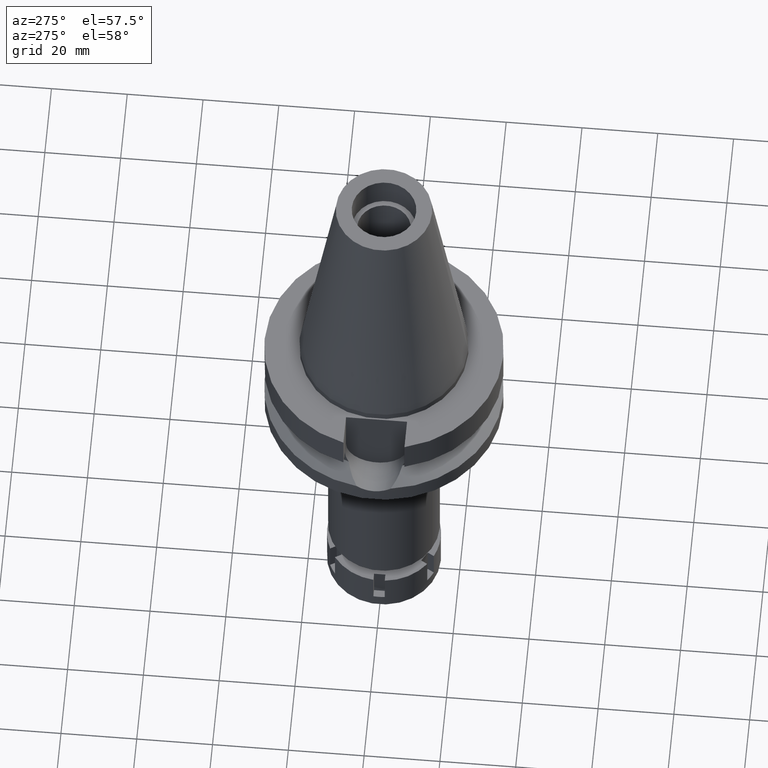
[diagram: clean part render]
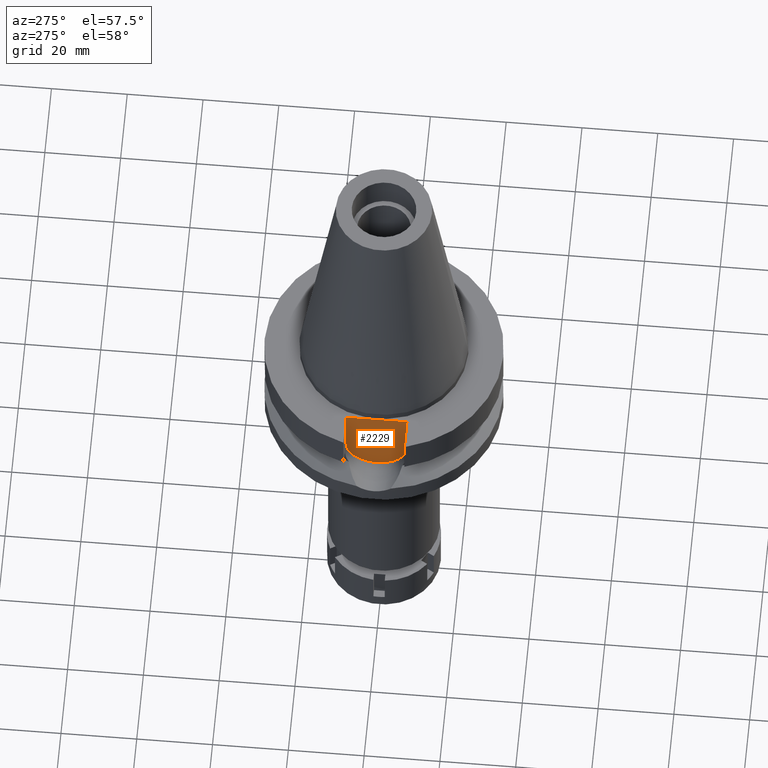
[diagram: same view with one face highlighted and labeled with its STEP entity id]
A machine part, auxiliary view. The second image highlights one B-rep face of the part: STEP entity #2229.
In plain terms, the highlighted planar face has unit normal (-1, 0, 0).
Its self-contained STEP definition (entity closure, byte-faithful):
#54 = VERTEX_POINT ( 'NONE', #2835 ) ;
#63 = EDGE_CURVE ( 'NONE', #339, #54, #313, .T. ) ;
#202 = CARTESIAN_POINT ( 'NONE',  ( -22.50000000000000000, 1.807578675540999863E-14, -14.94999999999999929 ) ) ;
#234 = ORIENTED_EDGE ( 'NONE', *, *, #63, .F. ) ;
#257 = CARTESIAN_POINT ( 'NONE',  ( -22.50000000000000000, -8.050000000000000711, -2.000000000000000000 ) ) ;
#262 = VERTEX_POINT ( 'NONE', #1224 ) ;
#313 = LINE ( 'NONE', #1769, #3539 ) ;
#339 = VERTEX_POINT ( 'NONE', #1144 ) ;
#387 = LINE ( 'NONE', #1786, #644 ) ;
#530 = DIRECTION ( 'NONE',  ( -1.000000000000000000, 0.0000000000000000000, 0.0000000000000000000 ) ) ;
#543 = DIRECTION ( 'NONE',  ( 0.0000000000000000000, 1.000000000000000000, 0.0000000000000000000 ) ) ;
#644 = VECTOR ( 'NONE', #1231, 1000.000000000000000 ) ;
#693 = AXIS2_PLACEMENT_3D ( 'NONE', #202, #1284, #1040 ) ;
#828 = CARTESIAN_POINT ( 'NONE',  ( -22.50000000000000000, 2.173748068486999793E-14, 0.0000000000000000000 ) ) ;
#982 = AXIS2_PLACEMENT_3D ( 'NONE', #828, #530, #2501 ) ;
#1040 = DIRECTION ( 'NONE',  ( 0.0000000000000000000, -1.000000000000000000, 1.917893035551997704E-14 ) ) ;
#1144 = CARTESIAN_POINT ( 'NONE',  ( -22.50000000000000000, -8.050000000000000711, -2.000000000000000000 ) ) ;
#1224 = CARTESIAN_POINT ( 'NONE',  ( -22.50000000000000000, 8.050000000000000711, -2.000000000000000000 ) ) ;
#1231 = DIRECTION ( 'NONE',  ( 0.0000000000000000000, 0.0000000000000000000, 1.000000000000000000 ) ) ;
#1263 = ORIENTED_EDGE ( 'NONE', *, *, #3082, .T. ) ;
#1284 = DIRECTION ( 'NONE',  ( 1.000000000000000000, 0.0000000000000000000, 0.0000000000000000000 ) ) ;
#1697 = VECTOR ( 'NONE', #543, 1000.000000000000000 ) ;
#1769 = CARTESIAN_POINT ( 'NONE',  ( -22.50000000000000000, -8.050000000000000711, -2.000000000000000000 ) ) ;
#1786 = CARTESIAN_POINT ( 'NONE',  ( -22.50000000000000000, 8.050000000000000711, -14.94999999999999929 ) ) ;
#1997 = ORIENTED_EDGE ( 'NONE', *, *, #3324, .F. ) ;
#2218 = CIRCLE ( 'NONE', #693, 8.050000000000000711 ) ;
#2219 = FACE_OUTER_BOUND ( 'NONE', #3505, .T. ) ;
#2229 = ADVANCED_FACE ( 'NONE', ( #2219 ), #3109, .T. ) ;
#2501 = DIRECTION ( 'NONE',  ( 0.0000000000000000000, 0.0000000000000000000, 1.000000000000000000 ) ) ;
#2580 = ORIENTED_EDGE ( 'NONE', *, *, #2881, .F. ) ;
#2740 = VERTEX_POINT ( 'NONE', #3194 ) ;
#2835 = CARTESIAN_POINT ( 'NONE',  ( -22.50000000000000000, -8.050000000000000711, -14.94999999999999929 ) ) ;
#2881 = EDGE_CURVE ( 'NONE', #54, #2740, #2218, .T. ) ;
#3066 = LINE ( 'NONE', #257, #1697 ) ;
#3082 = EDGE_CURVE ( 'NONE', #339, #262, #3066, .T. ) ;
#3109 = PLANE ( 'NONE',  #982 ) ;
#3134 = DIRECTION ( 'NONE',  ( 0.0000000000000000000, 0.0000000000000000000, -1.000000000000000000 ) ) ;
#3194 = CARTESIAN_POINT ( 'NONE',  ( -22.50000000000000000, 8.050000000000000711, -14.94999999999999929 ) ) ;
#3324 = EDGE_CURVE ( 'NONE', #2740, #262, #387, .T. ) ;
#3505 = EDGE_LOOP ( 'NONE', ( #1997, #2580, #234, #1263 ) ) ;
#3539 = VECTOR ( 'NONE', #3134, 1000.000000000000000 ) ;